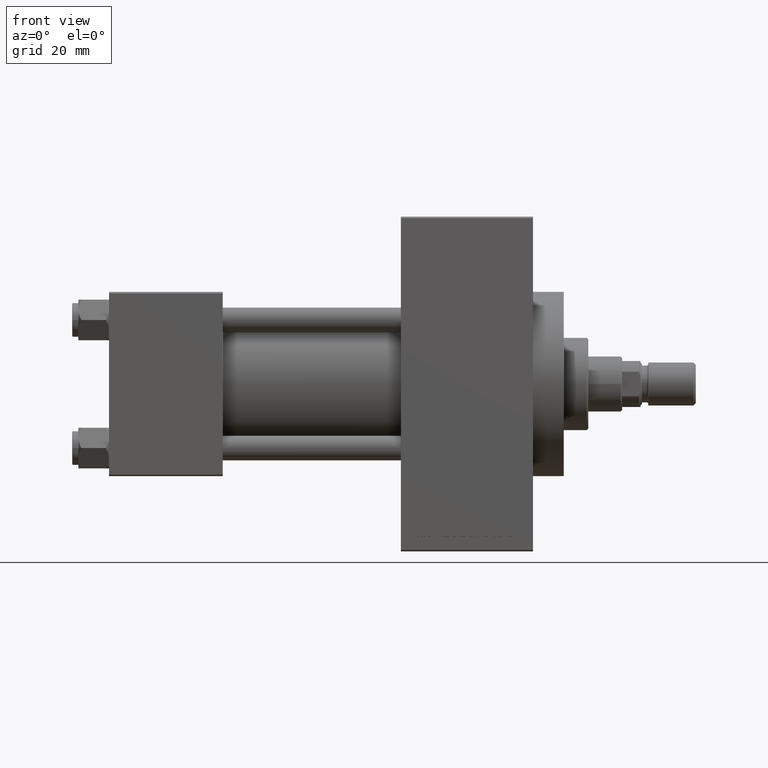
[diagram: clean part render]
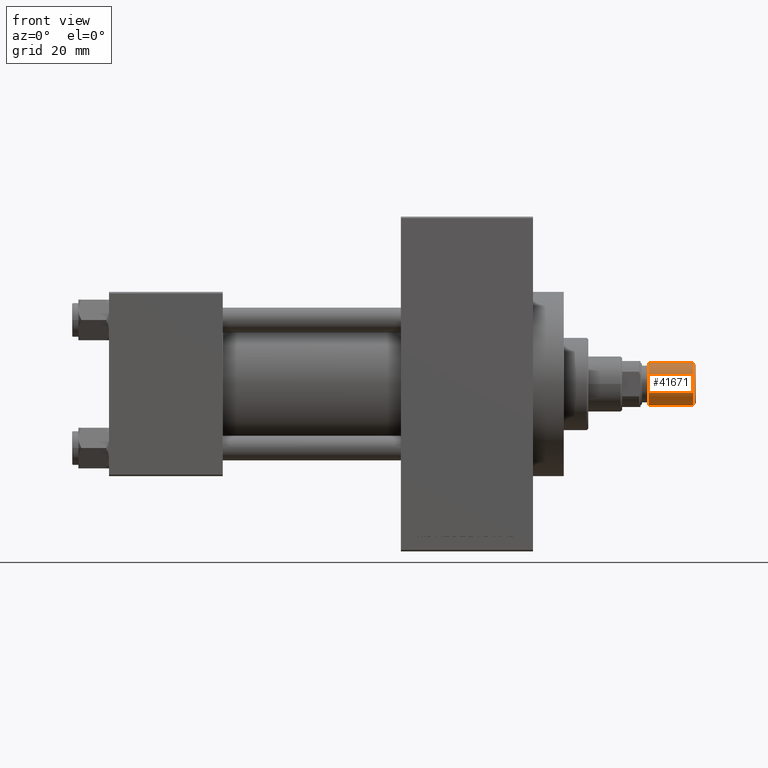
[diagram: same view with one face highlighted and labeled with its STEP entity id]
A machine part, front view. The second image highlights one B-rep face of the part: STEP entity #41671.
In plain terms, the highlighted cylindrical surface (edge-blend (fillet) strip) has radius 7 mm, axis along (1, -0, -0).
Its self-contained STEP definition (entity closure, byte-faithful):
#1 = CIRCLE ( 'NONE', #27076, 7.000000000000000000 ) ;
#1812 = DIRECTION ( 'NONE',  ( 0.000000000000000000, 0.000000000000000000, 1.000000000000000000 ) ) ;
#3000 = DIRECTION ( 'NONE',  ( -0.000000000000000000, -0.000000000000000000, -1.000000000000000000 ) ) ;
#4120 = CIRCLE ( 'NONE', #35052, 7.000000000000000000 ) ;
#6303 = DIRECTION ( 'NONE',  ( -0.000000000000000000, -0.000000000000000000, 1.000000000000000000 ) ) ;
#6843 = CARTESIAN_POINT ( 'NONE',  ( -7.000000000000000000, 0.000000000000000000, 15.50000000000000000 ) ) ;
#7584 = CARTESIAN_POINT ( 'NONE',  ( 7.000000000000000000, 8.572527594031473190E-16, 15.50000000000000000 ) ) ;
#8077 = ORIENTED_EDGE ( 'NONE', *, *, #47276, .F. ) ;
#8605 = DIRECTION ( 'NONE',  ( -0.000000000000000000, -0.000000000000000000, -1.000000000000000000 ) ) ;
#8729 = VERTEX_POINT ( 'NONE', #6843 ) ;
#8854 = VERTEX_POINT ( 'NONE', #26206 ) ;
#12048 = VERTEX_POINT ( 'NONE', #7584 ) ;
#14185 = EDGE_CURVE ( 'NONE', #8729, #31248, #20192, .T. ) ;
#14420 = VECTOR ( 'NONE', #8605, 1000.000000000000000 ) ;
#20192 = LINE ( 'NONE', #26765, #14420 ) ;
#23118 = ORIENTED_EDGE ( 'NONE', *, *, #14185, .T. ) ;
#24876 = AXIS2_PLACEMENT_3D ( 'NONE', #35930, #3000, #28919 ) ;
#25651 = CARTESIAN_POINT ( 'NONE',  ( 0.000000000000000000, 0.000000000000000000, 0.8000000000000020428 ) ) ;
#25992 = ORIENTED_EDGE ( 'NONE', *, *, #47666, .T. ) ;
#26170 = ORIENTED_EDGE ( 'NONE', *, *, #36833, .F. ) ;
#26206 = CARTESIAN_POINT ( 'NONE',  ( 7.000000000000000000, 8.572527594031473190E-16, 0.8000000000000020428 ) ) ;
#26765 = CARTESIAN_POINT ( 'NONE',  ( -7.000000000000000000, 0.000000000000000000, 15.50000000000000000 ) ) ;
#27076 = AXIS2_PLACEMENT_3D ( 'NONE', #27249, #1812, #35217 ) ;
#27249 = CARTESIAN_POINT ( 'NONE',  ( 0.000000000000000000, 0.000000000000000000, 15.50000000000000000 ) ) ;
#28585 = DIRECTION ( 'NONE',  ( -0.000000000000000000, -0.000000000000000000, -1.000000000000000000 ) ) ;
#28919 = DIRECTION ( 'NONE',  ( -1.000000000000000000, 0.000000000000000000, 0.000000000000000000 ) ) ;
#31181 = CARTESIAN_POINT ( 'NONE',  ( -7.000000000000000000, 0.000000000000000000, 0.8000000000000020428 ) ) ;
#31248 = VERTEX_POINT ( 'NONE', #31181 ) ;
#31270 = LINE ( 'NONE', #31983, #31904 ) ;
#31904 = VECTOR ( 'NONE', #28585, 1000.000000000000000 ) ;
#31983 = CARTESIAN_POINT ( 'NONE',  ( 7.000000000000000000, 8.572527594031473190E-16, 15.50000000000000000 ) ) ;
#35052 = AXIS2_PLACEMENT_3D ( 'NONE', #25651, #6303, #40433 ) ;
#35217 = DIRECTION ( 'NONE',  ( 1.000000000000000000, 0.000000000000000000, 0.000000000000000000 ) ) ;
#35930 = CARTESIAN_POINT ( 'NONE',  ( 0.000000000000000000, 0.000000000000000000, 15.50000000000000000 ) ) ;
#36168 = FACE_OUTER_BOUND ( 'NONE', #43800, .T. ) ;
#36833 = EDGE_CURVE ( 'NONE', #8729, #12048, #1, .T. ) ;
#40433 = DIRECTION ( 'NONE',  ( 1.000000000000000000, 0.000000000000000000, 0.000000000000000000 ) ) ;
#41671 = ADVANCED_FACE ( 'NONE', ( #36168 ), #47323, .T. ) ;
#43800 = EDGE_LOOP ( 'NONE', ( #8077, #26170, #23118, #25992 ) ) ;
#47276 = EDGE_CURVE ( 'NONE', #12048, #8854, #31270, .T. ) ;
#47323 = CYLINDRICAL_SURFACE ( 'NONE', #24876, 7.000000000000000000 ) ;
#47666 = EDGE_CURVE ( 'NONE', #31248, #8854, #4120, .T. ) ;